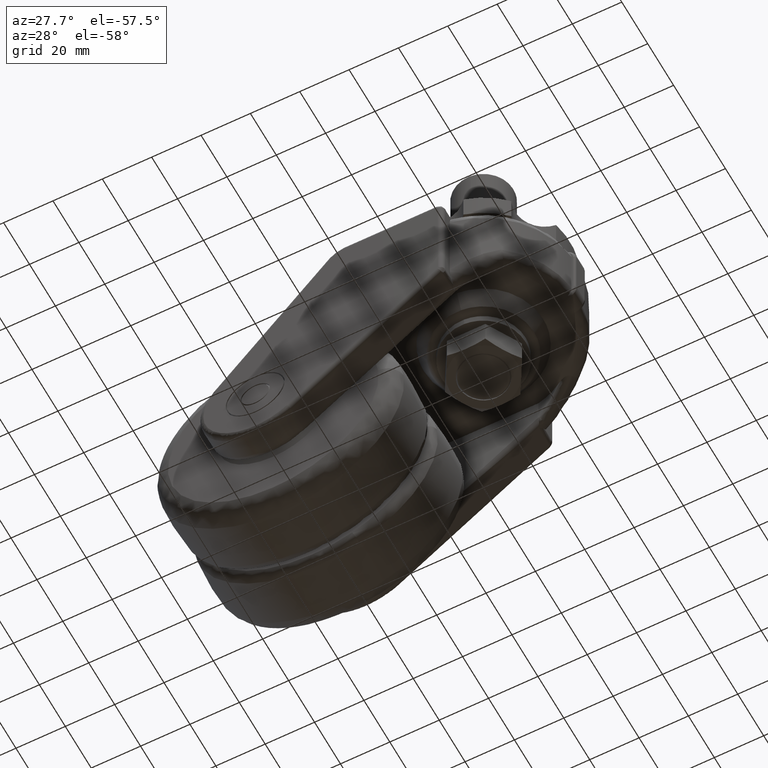
[diagram: clean part render]
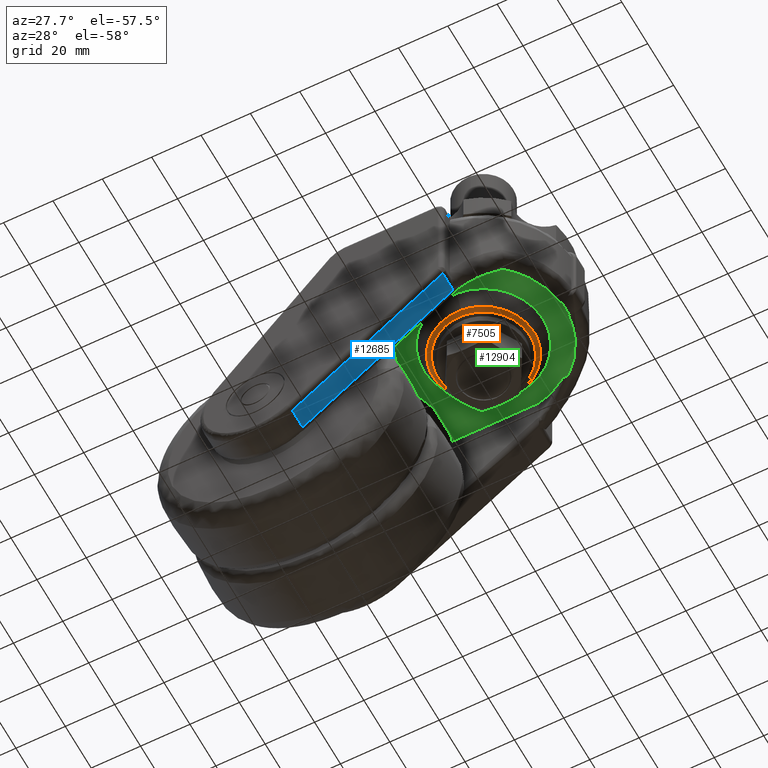
[diagram: same view with three faces highlighted in distinct colors, each labeled with its STEP entity id]
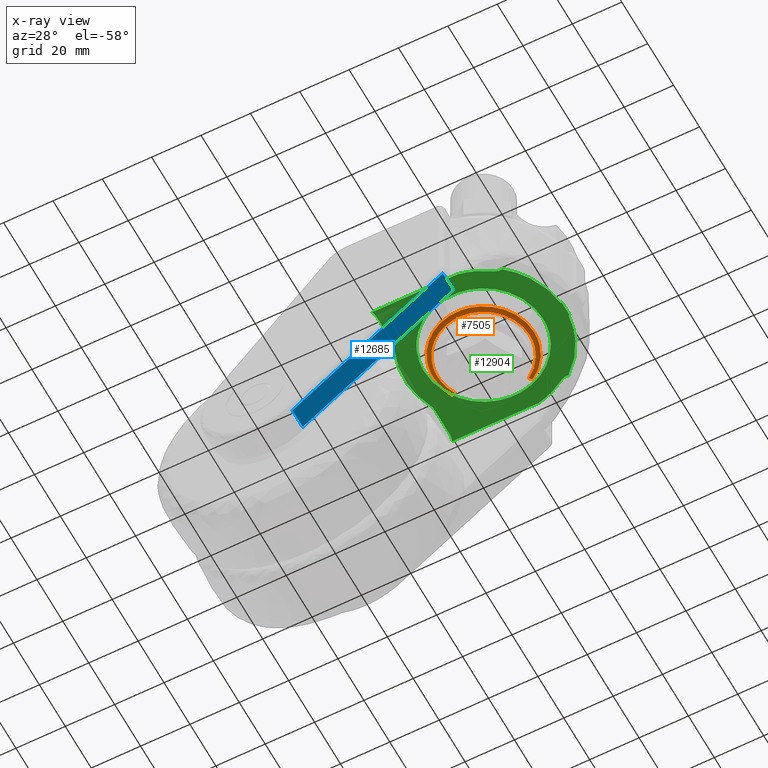
[diagram: x-ray of the same camera — body ghosted, the three highlighted faces saturated]
A machine part, auxiliary view with three faces highlighted in distinct colors.
The next image is the same camera in x-ray (body ghosted, the three faces saturated) — at least one of them is partly hidden behind the body in this view.
Their STEP definitions:

[orange] entity #7505 — the highlighted face is a freeform B-spline surface patch.
#7036=CARTESIAN_POINT('',(1.608237189835472,-20.434590996296642,-46.749999999971308));
#7037=VERTEX_POINT('',#7036);
#7038=CARTESIAN_POINT('',(-19.060155197579249,-7.541181597621881,-46.749999999995786));
#7039=VERTEX_POINT('',#7038);
#7040=CARTESIAN_POINT('',(1.608237189835472,-20.434590996296638,-46.749999999971308));
#7041=CARTESIAN_POINT('',(0.805359922932610,-20.497778807568849,-46.750000000000007));
#7042=CARTESIAN_POINT('',(0.0,-20.497778807568849,-46.750000000000000));
#7043=CARTESIAN_POINT('',(-13.933856306774846,-20.497778807568853,-46.750000000000007));
#7044=CARTESIAN_POINT('',(-19.060155197579245,-7.541181597621881,-46.749999999995794));
#7052=(BOUNDED_CURVE()B_SPLINE_CURVE(2,(#7040,#7041,#7042,#7043,#7044),.UNSPECIFIED.,.F.,.U.)B_SPLINE_CURVE_WITH_KNOTS((3,2,3),(0.736331300630033,0.750000000000000,0.937532549939011),.UNSPECIFIED.)CURVE()GEOMETRIC_REPRESENTATION_ITEM()RATIONAL_B_SPLINE_CURVE((0.969723356166111,0.983986122578148,1.0,0.780291951264274,0.890203187500830))REPRESENTATION_ITEM(''));
#7053=EDGE_CURVE('',#7037,#7039,#7052,.T.);
#7113=CARTESIAN_POINT('',(-20.497778807568849,0.0,-46.750000000000000));
#7114=VERTEX_POINT('',#7113);
#7115=CARTESIAN_POINT('',(-19.060155197579245,-7.541181597621881,-46.749999999995794));
#7116=CARTESIAN_POINT('',(-20.497778807568846,-3.907622483930452,-46.750000000000000));
#7117=CARTESIAN_POINT('',(-20.497778807568849,0.0,-46.750000000000000));
#7125=(BOUNDED_CURVE()B_SPLINE_CURVE(2,(#7115,#7116,#7117),.UNSPECIFIED.,.F.,.U.)B_SPLINE_CURVE_WITH_KNOTS((3,3),(0.937532549939011,1.0),.UNSPECIFIED.)CURVE()GEOMETRIC_REPRESENTATION_ITEM()RATIONAL_B_SPLINE_CURVE((0.890203187500830,0.926814829922274,1.0))REPRESENTATION_ITEM(''));
#7126=EDGE_CURVE('',#7039,#7114,#7125,.T.);
#7175=CARTESIAN_POINT('',(20.497778807568849,0.0,-46.750000000000000));
#7176=VERTEX_POINT('',#7175);
#7177=CARTESIAN_POINT('',(20.497778807568849,0.0,-46.750000000000000));
#7178=CARTESIAN_POINT('',(20.497778807568846,-18.947951829526595,-46.750000000000000));
#7179=CARTESIAN_POINT('',(1.608237189835472,-20.434590996296631,-46.749999999971308));
#7187=(BOUNDED_CURVE()B_SPLINE_CURVE(2,(#7177,#7178,#7179),.UNSPECIFIED.,.F.,.U.)B_SPLINE_CURVE_WITH_KNOTS((3,3),(0.500000000000000,0.736331300630033),.UNSPECIFIED.)CURVE()GEOMETRIC_REPRESENTATION_ITEM()RATIONAL_B_SPLINE_CURVE((1.0,0.723120658608400,0.969723356166109))REPRESENTATION_ITEM(''));
#7188=EDGE_CURVE('',#7176,#7037,#7187,.T.);
#7190=CARTESIAN_POINT('',(10.886024349340090,17.368172324893340,-46.750000000101480));
#7191=VERTEX_POINT('',#7190);
#7192=CARTESIAN_POINT('',(10.886024349340087,17.368172324893337,-46.750000000101480));
#7193=CARTESIAN_POINT('',(20.497778807568846,11.343716146447218,-46.750000000000000));
#7194=CARTESIAN_POINT('',(20.497778807568849,0.0,-46.750000000000000));
#7202=(BOUNDED_CURVE()B_SPLINE_CURVE(2,(#7192,#7193,#7194),.UNSPECIFIED.,.F.,.U.)B_SPLINE_CURVE_WITH_KNOTS((3,3),(0.340826728946267,0.500000000000000),.UNSPECIFIED.)CURVE()GEOMETRIC_REPRESENTATION_ITEM()RATIONAL_B_SPLINE_CURVE((0.864498809753992,0.813516913168024,1.0))REPRESENTATION_ITEM(''));
#7203=EDGE_CURVE('',#7191,#7176,#7202,.T.);
#7205=CARTESIAN_POINT('',(-17.962340493578960,9.874880250784839,-46.750000002932609));
#7206=VERTEX_POINT('',#7205);
#7222=CARTESIAN_POINT('',(-20.497778807568849,0.0,-46.750000000000000));
#7223=CARTESIAN_POINT('',(-20.497778807568846,5.262935082412175,-46.750000000000000));
#7224=CARTESIAN_POINT('',(-17.962340493578960,9.874880250784839,-46.750000002932609));
#7232=(BOUNDED_CURVE()B_SPLINE_CURVE(2,(#7222,#7223,#7224),.UNSPECIFIED.,.F.,.U.)B_SPLINE_CURVE_WITH_KNOTS((3,3),(0.0,0.082050816105531),.UNSPECIFIED.)CURVE()GEOMETRIC_REPRESENTATION_ITEM()RATIONAL_B_SPLINE_CURVE((1.0,0.903871489458322,0.870842360844274))REPRESENTATION_ITEM(''));
#7233=EDGE_CURVE('',#7114,#7206,#7232,.T.);
#7394=CARTESIAN_POINT('',(10.911256042158671,17.408428379351552,-46.662778054345594));
#7395=CARTESIAN_POINT('',(27.350965265465604,7.104346202300881,-46.662778054345601));
#7396=CARTESIAN_POINT('',(18.003973716102543,-9.897768308383723,-46.662778054345594));
#7397=CARTESIAN_POINT('',(8.106205407718823,-27.901742024486264,-46.662778054345594));
#7398=CARTESIAN_POINT('',(-9.897768308383723,-18.003973716102543,-46.662778054345594));
#7399=CARTESIAN_POINT('',(-27.901742024486264,-8.106205407718823,-46.662778054345594));
#7400=CARTESIAN_POINT('',(-18.003973716102543,9.897768308383721,-46.662778054345594));
#7401=CARTESIAN_POINT('',(10.598341664132629,16.909187272948380,-47.811488662897055));
#7402=CARTESIAN_POINT('',(26.566590831267849,6.900606865181003,-47.811488662897041));
#7403=CARTESIAN_POINT('',(17.487653485360624,-9.613918859512111,-47.811488662897034));
#7404=CARTESIAN_POINT('',(7.873734625848521,-27.101572344872736,-47.811488662897020));
#7405=CARTESIAN_POINT('',(-9.613918859512111,-17.487653485360624,-47.811488662897034));
#7406=CARTESIAN_POINT('',(-27.101572344872736,-7.873734625848521,-47.811488662897020));
#7407=CARTESIAN_POINT('',(-17.487653485360624,9.613918859512111,-47.811488662897034));
#7408=CARTESIAN_POINT('',(9.913552371158771,15.816636120668411,-47.747545278745072));
#7409=CARTESIAN_POINT('',(24.850047099370844,6.454738837328121,-47.747545278745058));
#7410=CARTESIAN_POINT('',(16.357725969762654,-8.992735951171506,-47.747545278745065));
#7411=CARTESIAN_POINT('',(7.364990018591152,-25.350461920934166,-47.747545278745072));
#7412=CARTESIAN_POINT('',(-8.992735951171506,-16.357725969762654,-47.747545278745065));
#7413=CARTESIAN_POINT('',(-25.350461920934166,-7.364990018591153,-47.747545278745072));
#7414=CARTESIAN_POINT('',(-16.357725969762654,8.992735951171506,-47.747545278745065));
#7422=(BOUNDED_SURFACE()B_SPLINE_SURFACE(2,2,((#7394,#7401,#7408),(#7395,#7402,#7409),(#7396,#7403,#7410),(#7397,#7404,#7411),(#7398,#7405,#7412),(#7399,#7406,#7413),(#7400,#7407,#7414)),.UNSPECIFIED.,.F.,.F.,.U.)B_SPLINE_SURFACE_WITH_KNOTS((3,2,2,3),(3,3),(0.0,32.678926906581673,66.719475767604237,100.760024628626790),(0.0,2.357739213814473),.UNSPECIFIED.)GEOMETRIC_REPRESENTATION_ITEM()RATIONAL_B_SPLINE_SURFACE(((0.902172434003437,0.758898030789854,0.904371783777623),(0.663425069069357,0.558066240462675,0.665042391568752),(0.922933074432487,0.776361664731348,0.925183035274047),(0.652612235512560,0.548970597784813,0.654203198081031),(0.922933074432487,0.776361664731348,0.925183035274047),(0.652612235512560,0.548970597784813,0.654203198081031),(0.922933074432487,0.776361664731348,0.925183035274047)))REPRESENTATION_ITEM('')SURFACE());
#7423=ORIENTED_EDGE('',*,*,#7203,.T.);
#7424=ORIENTED_EDGE('',*,*,#7188,.T.);
#7425=ORIENTED_EDGE('',*,*,#7053,.T.);
#7426=ORIENTED_EDGE('',*,*,#7126,.T.);
#7427=ORIENTED_EDGE('',*,*,#7233,.T.);
#7428=CARTESIAN_POINT('',(-16.444532813342992,9.040458417695760,-47.750000000000000));
#7429=VERTEX_POINT('',#7428);
#7430=CARTESIAN_POINT('',(-17.962340493578957,9.874880250784839,-46.750000002932602));
#7431=CARTESIAN_POINT('',(-17.456404601052053,9.596739639987643,-47.749999985194727));
#7432=CARTESIAN_POINT('',(-16.444532813342988,9.040458417695760,-47.750000000000007));
#7440=(BOUNDED_CURVE()B_SPLINE_CURVE(2,(#7430,#7431,#7432),.UNSPECIFIED.,.F.,.U.)B_SPLINE_CURVE_WITH_KNOTS((3,3),(-1.633016439692345,-0.356287705853259),.UNSPECIFIED.)CURVE()GEOMETRIC_REPRESENTATION_ITEM()RATIONAL_B_SPLINE_CURVE((0.910229671253189,0.789167273654068,0.912275219683573))REPRESENTATION_ITEM(''));
#7441=EDGE_CURVE('',#7206,#7429,#7440,.T.);
#7442=ORIENTED_EDGE('',*,*,#7441,.T.);
#7443=CARTESIAN_POINT('',(-18.765727999999950,0.0,-47.750000000000000));
#7444=VERTEX_POINT('',#7443);
#7445=CARTESIAN_POINT('',(-18.765727999999950,0.0,-47.750000000000000));
#7446=CARTESIAN_POINT('',(-18.765727999999953,4.818220021326581,-47.750000000000000));
#7447=CARTESIAN_POINT('',(-16.444532813342988,9.040458417695760,-47.750000000000000));
#7455=(BOUNDED_CURVE()B_SPLINE_CURVE(2,(#7445,#7446,#7447),.UNSPECIFIED.,.F.,.U.)B_SPLINE_CURVE_WITH_KNOTS((3,3),(0.0,0.082050816109396),.UNSPECIFIED.)CURVE()GEOMETRIC_REPRESENTATION_ITEM()RATIONAL_B_SPLINE_CURVE((1.0,0.903871489453793,0.870842360841162))REPRESENTATION_ITEM(''));
#7456=EDGE_CURVE('',#7444,#7429,#7455,.T.);
#7457=ORIENTED_EDGE('',*,*,#7456,.F.);
#7458=CARTESIAN_POINT('',(18.765727999999950,0.0,-47.750000000000000));
#7459=VERTEX_POINT('',#7458);
#7460=CARTESIAN_POINT('',(18.765727999999950,0.0,-47.750000000000000));
#7461=CARTESIAN_POINT('',(18.765727999999946,-18.765727999999946,-47.750000000000000));
#7462=CARTESIAN_POINT('',(0.0,-18.765727999999950,-47.750000000000000));
#7463=CARTESIAN_POINT('',(-18.765727999999946,-18.765727999999946,-47.750000000000000));
#7464=CARTESIAN_POINT('',(-18.765727999999950,0.0,-47.750000000000000));
#7472=(BOUNDED_CURVE()B_SPLINE_CURVE(2,(#7460,#7461,#7462,#7463,#7464),.UNSPECIFIED.,.F.,.U.)B_SPLINE_CURVE_WITH_KNOTS((3,2,3),(0.500000000000000,0.750000000000000,1.0),.UNSPECIFIED.)CURVE()GEOMETRIC_REPRESENTATION_ITEM()RATIONAL_B_SPLINE_CURVE((1.0,0.707106781186547,1.0,0.707106781186547,1.0))REPRESENTATION_ITEM(''));
#7473=EDGE_CURVE('',#7459,#7444,#7472,.T.);
#7474=ORIENTED_EDGE('',*,*,#7473,.F.);
#7475=CARTESIAN_POINT('',(9.966161405008862,15.900571516445449,-47.750000000000000));
#7476=VERTEX_POINT('',#7475);
#7477=CARTESIAN_POINT('',(9.966161405008863,15.900571516445448,-47.750000000000000));
#7478=CARTESIAN_POINT('',(18.765727999999946,10.385178497015016,-47.750000000000007));
#7479=CARTESIAN_POINT('',(18.765727999999950,0.0,-47.750000000000000));
#7487=(BOUNDED_CURVE()B_SPLINE_CURVE(2,(#7477,#7478,#7479),.UNSPECIFIED.,.F.,.U.)B_SPLINE_CURVE_WITH_KNOTS((3,3),(0.340826728949005,0.500000000000000),.UNSPECIFIED.)CURVE()GEOMETRIC_REPRESENTATION_ITEM()RATIONAL_B_SPLINE_CURVE((0.864498809752237,0.813516913171232,1.0))REPRESENTATION_ITEM(''));
#7488=EDGE_CURVE('',#7476,#7459,#7487,.T.);
#7489=ORIENTED_EDGE('',*,*,#7488,.F.);
#7490=CARTESIAN_POINT('',(10.886024349340087,17.368172324893337,-46.750000000101480));
#7491=CARTESIAN_POINT('',(10.579403369339831,16.878972057829824,-47.749999989837839));
#7492=CARTESIAN_POINT('',(9.966161405008862,15.900571516445449,-47.750000000000000));
#7500=(BOUNDED_CURVE()B_SPLINE_CURVE(2,(#7490,#7491,#7492),.UNSPECIFIED.,.F.,.U.)B_SPLINE_CURVE_WITH_KNOTS((3,3),(-1.633016443861418,-0.356287700713705),.UNSPECIFIED.)CURVE()GEOMETRIC_REPRESENTATION_ITEM()RATIONAL_B_SPLINE_CURVE((0.889754784478691,0.771415586925186,0.891754320131204))REPRESENTATION_ITEM(''));
#7501=EDGE_CURVE('',#7191,#7476,#7500,.T.);
#7502=ORIENTED_EDGE('',*,*,#7501,.F.);
#7503=EDGE_LOOP('',(#7423,#7424,#7425,#7426,#7427,#7442,#7457,#7474,#7489,#7502));
#7504=FACE_OUTER_BOUND('',#7503,.T.);
#7505=ADVANCED_FACE('',(#7504),#7422,.T.);

[blue] entity #12685 — the highlighted face is a freeform B-spline surface patch.
#11237=CARTESIAN_POINT('',(5.024925279322760,-33.0,-53.274314453694913));
#11238=VERTEX_POINT('',#11237);
#11249=CARTESIAN_POINT('',(-55.970693999999902,-33.0,-100.225768000000000));
#11250=VERTEX_POINT('',#11249);
#11251=CARTESIAN_POINT('',(-55.970693999999902,-33.0,-100.225768000000000));
#11252=CARTESIAN_POINT('',(5.024925279322760,-33.0,-53.274314453694913));
#11253=QUASI_UNIFORM_CURVE('',1,(#11251,#11252),.UNSPECIFIED.,.F.,.U.);
#11254=EDGE_CURVE('',#11250,#11238,#11253,.T.);
#11989=CARTESIAN_POINT('',(-55.970693999999902,-41.0,-100.225768000000000));
#11990=VERTEX_POINT('',#11989);
#12120=CARTESIAN_POINT('',(5.024925303963990,-41.0,-53.274314434727302));
#12121=VERTEX_POINT('',#12120);
#12143=CARTESIAN_POINT('',(5.024925303963990,-41.0,-53.274314434727302));
#12144=CARTESIAN_POINT('',(-55.970693999999902,-41.0,-100.225768000000000));
#12145=QUASI_UNIFORM_CURVE('',1,(#12143,#12144),.UNSPECIFIED.,.F.,.U.);
#12146=EDGE_CURVE('',#12121,#11990,#12145,.T.);
#12629=CARTESIAN_POINT('',(-55.970693999999902,-33.0,-100.225768000000000));
#12630=CARTESIAN_POINT('',(-55.970693999999902,-41.0,-100.225768000000000));
#12631=QUASI_UNIFORM_CURVE('',1,(#12629,#12630),.UNSPECIFIED.,.F.,.U.);
#12632=EDGE_CURVE('',#11250,#11990,#12631,.T.);
#12670=CARTESIAN_POINT('',(8.071656369975694,-41.399599984494458,-50.929089420143022));
#12671=CARTESIAN_POINT('',(-59.017426702041547,-41.399599984494458,-102.570994273920500));
#12672=CARTESIAN_POINT('',(8.071656369975694,-32.600399800928827,-50.929089420143022));
#12673=CARTESIAN_POINT('',(-59.017426702041547,-32.600399800928827,-102.570994273920500));
#12674=B_SPLINE_SURFACE_WITH_KNOTS('',1,1,((#12670,#12672),(#12671,#12673)),.UNSPECIFIED.,.F.,.F.,.U.,(2,2),(2,2),(0.0,84.663046273865163),(0.0,8.799200183565624),.UNSPECIFIED.);
#12675=ORIENTED_EDGE('',*,*,#11254,.T.);
#12676=CARTESIAN_POINT('',(5.024925279322760,-33.0,-53.274314453694913));
#12677=CARTESIAN_POINT('',(5.024925303963990,-41.0,-53.274314434727302));
#12678=QUASI_UNIFORM_CURVE('',1,(#12676,#12677),.UNSPECIFIED.,.F.,.U.);
#12679=EDGE_CURVE('',#11238,#12121,#12678,.T.);
#12680=ORIENTED_EDGE('',*,*,#12679,.T.);
#12681=ORIENTED_EDGE('',*,*,#12146,.T.);
#12682=ORIENTED_EDGE('',*,*,#12632,.F.);
#12683=EDGE_LOOP('',(#12675,#12680,#12681,#12682));
#12684=FACE_OUTER_BOUND('',#12683,.T.);
#12685=ADVANCED_FACE('',(#12684),#12674,.T.);

[green] entity #12904 — the highlighted face is a freeform B-spline surface patch.
#7055=CARTESIAN_POINT('',(1.891352058272792,-24.031906479094658,-40.499999999979202));
#7056=VERTEX_POINT('',#7055);
#7062=CARTESIAN_POINT('',(-22.415514324111179,-8.868734927468939,-40.499999999984361));
#7063=VERTEX_POINT('',#7062);
#7064=CARTESIAN_POINT('',(1.891352058272792,-24.031906479094662,-40.499999999979195));
#7065=CARTESIAN_POINT('',(0.947135881110556,-24.106217903845998,-40.500000000000007));
#7066=CARTESIAN_POINT('',(0.0,-24.106217903846002,-40.500000000000000));
#7067=CARTESIAN_POINT('',(-16.386779246818985,-24.106217903846002,-40.500000000000000));
#7068=CARTESIAN_POINT('',(-22.415514324111182,-8.868734927468939,-40.499999999984361));
#7076=(BOUNDED_CURVE()B_SPLINE_CURVE(2,(#7064,#7065,#7066,#7067,#7068),.UNSPECIFIED.,.F.,.U.)B_SPLINE_CURVE_WITH_KNOTS((3,2,3),(0.736331300631088,0.750000000000000,0.937532549938036),.UNSPECIFIED.)CURVE()GEOMETRIC_REPRESENTATION_ITEM()RATIONAL_B_SPLINE_CURVE((0.969723356168311,0.983986122579384,1.0,0.780291951265417,0.890203187499687))REPRESENTATION_ITEM(''));
#7077=EDGE_CURVE('',#7056,#7063,#7076,.T.);
#7129=CARTESIAN_POINT('',(-24.106217903846002,0.0,-40.500000000000000));
#7130=VERTEX_POINT('',#7129);
#7131=CARTESIAN_POINT('',(-22.415514324111175,-8.868734927468939,-40.499999999984368));
#7132=CARTESIAN_POINT('',(-24.106217903846002,-4.595522274364731,-40.500000000000000));
#7133=CARTESIAN_POINT('',(-24.106217903846002,0.0,-40.500000000000000));
#7141=(BOUNDED_CURVE()B_SPLINE_CURVE(2,(#7131,#7132,#7133),.UNSPECIFIED.,.F.,.U.)B_SPLINE_CURVE_WITH_KNOTS((3,3),(0.937532549938035,1.0),.UNSPECIFIED.)CURVE()GEOMETRIC_REPRESENTATION_ITEM()RATIONAL_B_SPLINE_CURVE((0.890203187499686,0.926814829921130,1.0))REPRESENTATION_ITEM(''));
#7142=EDGE_CURVE('',#7063,#7130,#7141,.T.);
#7144=CARTESIAN_POINT('',(24.106217903846002,0.0,-40.500000000000000));
#7145=VERTEX_POINT('',#7144);
#7146=CARTESIAN_POINT('',(-24.106217903846002,0.0,-40.500000000000000));
#7147=CARTESIAN_POINT('',(-24.106217903846002,24.106217903846002,-40.500000000000000));
#7148=CARTESIAN_POINT('',(0.0,24.106217903846002,-40.500000000000000));
#7149=CARTESIAN_POINT('',(24.106217903846002,24.106217903846002,-40.500000000000000));
#7150=CARTESIAN_POINT('',(24.106217903846002,0.0,-40.500000000000000));
#7158=(BOUNDED_CURVE()B_SPLINE_CURVE(2,(#7146,#7147,#7148,#7149,#7150),.UNSPECIFIED.,.F.,.U.)B_SPLINE_CURVE_WITH_KNOTS((3,2,3),(0.0,0.250000000000000,0.500000000000000),.UNSPECIFIED.)CURVE()GEOMETRIC_REPRESENTATION_ITEM()RATIONAL_B_SPLINE_CURVE((1.0,0.707106781186548,1.0,0.707106781186548,1.0))REPRESENTATION_ITEM(''));
#7159=EDGE_CURVE('',#7130,#7145,#7158,.T.);
#7161=CARTESIAN_POINT('',(24.106217903846002,0.0,-40.500000000000000));
#7162=CARTESIAN_POINT('',(24.106217903846002,-22.283558619937082,-40.500000000000000));
#7163=CARTESIAN_POINT('',(1.891352058272792,-24.031906479094662,-40.499999999979195));
#7171=(BOUNDED_CURVE()B_SPLINE_CURVE(2,(#7161,#7162,#7163),.UNSPECIFIED.,.F.,.U.)B_SPLINE_CURVE_WITH_KNOTS((3,3),(0.500000000000000,0.736331300631087),.UNSPECIFIED.)CURVE()GEOMETRIC_REPRESENTATION_ITEM()RATIONAL_B_SPLINE_CURVE((1.0,0.723120658607164,0.969723356168311))REPRESENTATION_ITEM(''));
#7172=EDGE_CURVE('',#7145,#7056,#7171,.T.);
#7764=CARTESIAN_POINT('',(32.863353450309951,3.0,-40.500000000000000));
#7765=VERTEX_POINT('',#7764);
#7766=CARTESIAN_POINT('',(33.299999999999997,3.0,-40.500000000000000));
#7767=VERTEX_POINT('',#7766);
#7768=CARTESIAN_POINT('',(32.863353450309951,3.0,-40.500000000000000));
#7769=CARTESIAN_POINT('',(33.299999999999997,3.0,-40.500000000000000));
#7770=QUASI_UNIFORM_CURVE('',1,(#7768,#7769),.UNSPECIFIED.,.F.,.U.);
#7771=EDGE_CURVE('',#7765,#7767,#7770,.T.);
#8084=CARTESIAN_POINT('',(32.863353450309951,-3.0,-40.500000000000000));
#8085=VERTEX_POINT('',#8084);
#8099=CARTESIAN_POINT('',(33.299999999999997,-3.0,-40.500000000000000));
#8100=VERTEX_POINT('',#8099);
#8101=CARTESIAN_POINT('',(33.299999999999997,-3.0,-40.500000000000000));
#8102=CARTESIAN_POINT('',(32.863353450309951,-3.0,-40.500000000000000));
#8103=QUASI_UNIFORM_CURVE('',1,(#8101,#8102),.UNSPECIFIED.,.F.,.U.);
#8104=EDGE_CURVE('',#8100,#8085,#8103,.T.);
#8427=CARTESIAN_POINT('',(33.299999999999997,3.0,-40.500000000000000));
#8428=CARTESIAN_POINT('',(33.299999999999997,-3.0,-40.500000000000000));
#8429=QUASI_UNIFORM_CURVE('',1,(#8427,#8428),.UNSPECIFIED.,.F.,.U.);
#8430=EDGE_CURVE('',#7767,#8100,#8429,.T.);
#8834=CARTESIAN_POINT('',(20.890018525611548,-25.546176347927751,-40.500000000000000));
#8835=VERTEX_POINT('',#8834);
#8855=CARTESIAN_POINT('',(32.863353450309972,-2.999999999999993,-40.500000000000000));
#8856=CARTESIAN_POINT('',(31.605041151798069,-16.784120605622935,-40.500000000000000));
#8857=CARTESIAN_POINT('',(20.890018525611548,-25.546176347927751,-40.500000000000000));
#8865=(BOUNDED_CURVE()B_SPLINE_CURVE(2,(#8855,#8856,#8857),.UNSPECIFIED.,.F.,.U.)CURVE()GEOMETRIC_REPRESENTATION_ITEM()QUASI_UNIFORM_CURVE()RATIONAL_B_SPLINE_CURVE((1.0,0.922167216070939,1.0))REPRESENTATION_ITEM(''));
#8866=EDGE_CURVE('',#8085,#8835,#8865,.T.);
#9022=CARTESIAN_POINT('',(-28.307071999999948,17.113600053373400,-40.500000000000000));
#9023=VERTEX_POINT('',#9022);
#9039=CARTESIAN_POINT('',(-29.152441060240950,13.196028956817999,-40.500000000000000));
#9040=VERTEX_POINT('',#9039);
#9041=CARTESIAN_POINT('',(-28.307071999999959,17.113600053373350,-40.500000000000000));
#9042=CARTESIAN_POINT('',(-28.307071999999959,15.063603799482561,-40.500000000000007));
#9043=CARTESIAN_POINT('',(-29.152441060240939,13.196028956817999,-40.500000000000000));
#9051=(BOUNDED_CURVE()B_SPLINE_CURVE(2,(#9041,#9042,#9043),.UNSPECIFIED.,.F.,.U.)CURVE()GEOMETRIC_REPRESENTATION_ITEM()QUASI_UNIFORM_CURVE()RATIONAL_B_SPLINE_CURVE((1.0,0.977500328166832,1.0))REPRESENTATION_ITEM(''));
#9052=EDGE_CURVE('',#9023,#9040,#9051,.T.);
#9099=CARTESIAN_POINT('',(-28.307071999999948,27.500000000000000,-40.500000000000000));
#9100=VERTEX_POINT('',#9099);
#9116=CARTESIAN_POINT('',(-28.307071999999948,27.500000000000000,-40.500000000000000));
#9117=CARTESIAN_POINT('',(-28.307071999999948,17.113600053373400,-40.500000000000000));
#9118=QUASI_UNIFORM_CURVE('',1,(#9116,#9117),.UNSPECIFIED.,.F.,.U.);
#9119=EDGE_CURVE('',#9100,#9023,#9118,.T.);
#9149=CARTESIAN_POINT('',(-28.975311133672101,31.0,-40.500000000000000));
#9150=VERTEX_POINT('',#9149);
#9183=CARTESIAN_POINT('',(-28.975311133672111,31.0,-40.500000000000000));
#9184=CARTESIAN_POINT('',(-28.307071999999952,29.313791934252986,-40.500000000000000));
#9185=CARTESIAN_POINT('',(-28.307071999999959,27.500000000000000,-40.500000000000000));
#9193=(BOUNDED_CURVE()B_SPLINE_CURVE(2,(#9183,#9184,#9185),.UNSPECIFIED.,.F.,.U.)CURVE()GEOMETRIC_REPRESENTATION_ITEM()QUASI_UNIFORM_CURVE()RATIONAL_B_SPLINE_CURVE((1.0,0.982257358985115,1.0))REPRESENTATION_ITEM(''));
#9194=EDGE_CURVE('',#9150,#9100,#9193,.T.);
#9298=CARTESIAN_POINT('',(20.890018525613801,25.546176347928650,-40.500000000000000));
#9299=VERTEX_POINT('',#9298);
#9315=CARTESIAN_POINT('',(17.248898610326901,26.447599073085250,-40.500000000000000));
#9316=VERTEX_POINT('',#9315);
#9317=CARTESIAN_POINT('',(20.890018525613780,25.546176347928721,-40.500000000000000));
#9318=CARTESIAN_POINT('',(20.852502418089081,25.531181162683431,-40.500000000000007));
#9319=CARTESIAN_POINT('',(20.814332010198179,25.517754511093230,-40.500000000000000));
#9320=CARTESIAN_POINT('',(20.736800680700650,25.493755188938160,-40.499999999999993));
#9321=CARTESIAN_POINT('',(20.697306768395929,25.483153888200039,-40.500000000000007));
#9322=CARTESIAN_POINT('',(20.578178876257130,25.455515170430001,-40.500000000000000));
#9323=CARTESIAN_POINT('',(20.498343247403621,25.442652708335181,-40.500000000000000));
#9324=CARTESIAN_POINT('',(20.338023876804691,25.425573788741421,-40.500000000000000));
#9325=CARTESIAN_POINT('',(20.257538656418401,25.421377056719340,-40.500000000000000));
#9326=CARTESIAN_POINT('',(20.096033421295761,25.420117896693110,-40.500000000000000));
#9327=CARTESIAN_POINT('',(20.014803332057689,25.423081455827209,-40.500000000000000));
#9328=CARTESIAN_POINT('',(19.771853408978121,25.441035030650571,-40.499999999999993));
#9329=CARTESIAN_POINT('',(19.612599920422689,25.464713508766991,-40.500000000000007));
#9330=CARTESIAN_POINT('',(19.297962380291960,25.528770345782910,-40.499999999999993));
#9331=CARTESIAN_POINT('',(19.142600619134651,25.569244906616909,-40.500000000000000));
#9332=CARTESIAN_POINT('',(18.911916106492260,25.640134061760200,-40.499999999999979));
#9333=CARTESIAN_POINT('',(18.835418374319971,25.665477624418319,-40.500000000000007));
#9334=CARTESIAN_POINT('',(18.683158764073070,25.719340580163639,-40.499999999999993));
#9335=CARTESIAN_POINT('',(18.607320210520829,25.747895356668760,-40.500000000000000));
#9336=CARTESIAN_POINT('',(18.382177347426151,25.837503871932661,-40.499999999999993));
#9337=CARTESIAN_POINT('',(18.234821168394820,25.902608038175721,-40.500000000000000));
#9338=CARTESIAN_POINT('',(17.800069309744611,26.112252124490979,-40.500000000000000));
#9339=CARTESIAN_POINT('',(17.519864586698549,26.270877373683899,-40.500000000000007));
#9340=CARTESIAN_POINT('',(17.248898610326901,26.447599073085300,-40.500000000000000));
#9341=B_SPLINE_CURVE_WITH_KNOTS('',3,(#9317,#9318,#9319,#9320,#9321,#9322,#9323,#9324,#9325,#9326,#9327,#9328,#9329,#9330,#9331,#9332,#9333,#9334,#9335,#9336,#9337,#9338,#9339,#9340),.UNSPECIFIED.,.F.,.U.,(4,2,2,2,2,2,2,2,2,2,2,4),(0.0,0.031249999999999,0.062499999999998,0.124999999999997,0.187499999999995,0.249999999999994,0.374999999999993,0.499999999999993,0.562499999999993,0.624999999999994,0.749999999999996,1.0),.UNSPECIFIED.);
#9342=EDGE_CURVE('',#9299,#9316,#9341,.T.);
#10774=CARTESIAN_POINT('',(6.000000000000171,31.0,-40.500000000000000));
#10775=VERTEX_POINT('',#10774);
#10776=CARTESIAN_POINT('',(17.248898610326918,26.447599073085271,-40.500000000000000));
#10777=CARTESIAN_POINT('',(12.070155455522153,29.825131202156953,-40.500000000000000));
#10778=CARTESIAN_POINT('',(6.000000000000157,30.999999999999950,-40.500000000000000));
#10786=(BOUNDED_CURVE()B_SPLINE_CURVE(2,(#10776,#10777,#10778),.UNSPECIFIED.,.F.,.U.)CURVE()GEOMETRIC_REPRESENTATION_ITEM()QUASI_UNIFORM_CURVE()RATIONAL_B_SPLINE_CURVE((1.0,0.981363185865212,1.0))REPRESENTATION_ITEM(''));
#10787=EDGE_CURVE('',#9316,#10775,#10786,.T.);
#10805=CARTESIAN_POINT('',(-28.975311133672101,31.0,-40.500000000000000));
#10806=CARTESIAN_POINT('',(6.000000000000171,31.0,-40.500000000000000));
#10807=QUASI_UNIFORM_CURVE('',1,(#10805,#10806),.UNSPECIFIED.,.F.,.U.);
#10808=EDGE_CURVE('',#9150,#10775,#10807,.T.);
#10858=CARTESIAN_POINT('',(-29.152441060240950,-13.196028956817999,-40.500000000000000));
#10859=VERTEX_POINT('',#10858);
#10860=CARTESIAN_POINT('',(-29.152441060240928,-13.196028956817999,-40.500000000000000));
#10861=CARTESIAN_POINT('',(-35.125703466272178,-1.387779E-014,-40.499999999999993));
#10862=CARTESIAN_POINT('',(-29.152441060240928,13.196028956817980,-40.500000000000000));
#10870=(BOUNDED_CURVE()B_SPLINE_CURVE(2,(#10860,#10861,#10862),.UNSPECIFIED.,.F.,.U.)CURVE()GEOMETRIC_REPRESENTATION_ITEM()QUASI_UNIFORM_CURVE()RATIONAL_B_SPLINE_CURVE((1.0,0.911013783132529,1.0))REPRESENTATION_ITEM(''));
#10871=EDGE_CURVE('',#10859,#9040,#10870,.T.);
#10906=CARTESIAN_POINT('',(-28.307071999999948,-17.113600053373400,-40.500000000000000));
#10907=VERTEX_POINT('',#10906);
#10937=CARTESIAN_POINT('',(-28.307071999999959,-17.113600053373350,-40.500000000000000));
#10938=CARTESIAN_POINT('',(-28.307071999999959,-15.063603799482561,-40.500000000000007));
#10939=CARTESIAN_POINT('',(-29.152441060240939,-13.196028956817999,-40.500000000000000));
#10947=(BOUNDED_CURVE()B_SPLINE_CURVE(2,(#10937,#10938,#10939),.UNSPECIFIED.,.F.,.U.)CURVE()GEOMETRIC_REPRESENTATION_ITEM()QUASI_UNIFORM_CURVE()RATIONAL_B_SPLINE_CURVE((1.0,0.977500328166832,1.0))REPRESENTATION_ITEM(''));
#10948=EDGE_CURVE('',#10907,#10859,#10947,.T.);
#10967=CARTESIAN_POINT('',(-28.307071999999948,-27.500000000000000,-40.500000000000000));
#10968=VERTEX_POINT('',#10967);
#10990=CARTESIAN_POINT('',(-28.307071999999948,-27.500000000000000,-40.500000000000000));
#10991=CARTESIAN_POINT('',(-28.307071999999948,-17.113600053373400,-40.500000000000000));
#10992=QUASI_UNIFORM_CURVE('',1,(#10990,#10991),.UNSPECIFIED.,.F.,.U.);
#10993=EDGE_CURVE('',#10968,#10907,#10992,.T.);
#11017=CARTESIAN_POINT('',(-28.975311133672101,-31.0,-40.500000000000000));
#11018=VERTEX_POINT('',#11017);
#11065=CARTESIAN_POINT('',(-28.975311133672111,-31.0,-40.500000000000000));
#11066=CARTESIAN_POINT('',(-28.307071999999952,-29.313791934252986,-40.500000000000000));
#11067=CARTESIAN_POINT('',(-28.307071999999959,-27.500000000000000,-40.500000000000000));
#11075=(BOUNDED_CURVE()B_SPLINE_CURVE(2,(#11065,#11066,#11067),.UNSPECIFIED.,.F.,.U.)CURVE()GEOMETRIC_REPRESENTATION_ITEM()QUASI_UNIFORM_CURVE()RATIONAL_B_SPLINE_CURVE((1.0,0.982257358985115,1.0))REPRESENTATION_ITEM(''));
#11076=EDGE_CURVE('',#11018,#10968,#11075,.T.);
#11175=CARTESIAN_POINT('',(17.248898610326901,-26.447599073085250,-40.500000000000000));
#11176=VERTEX_POINT('',#11175);
#11190=CARTESIAN_POINT('',(20.890018525611520,-25.546176347927819,-40.500000000000000));
#11191=CARTESIAN_POINT('',(20.852502418086821,-25.531181162682600,-40.500000000000000));
#11192=CARTESIAN_POINT('',(20.814332010195919,-25.517754511092480,-40.500000000000000));
#11193=CARTESIAN_POINT('',(20.736800680698408,-25.493755188937541,-40.500000000000000));
#11194=CARTESIAN_POINT('',(20.697306768393670,-25.483153888199460,-40.500000000000000));
#11195=CARTESIAN_POINT('',(20.578178876254949,-25.455515170429599,-40.500000000000000));
#11196=CARTESIAN_POINT('',(20.498343247401468,-25.442652708334869,-40.500000000000000));
#11197=CARTESIAN_POINT('',(20.338023876802630,-25.425573788741271,-40.500000000000000));
#11198=CARTESIAN_POINT('',(20.257538656416390,-25.421377056719258,-40.499999999999993));
#11199=CARTESIAN_POINT('',(20.096033421293839,-25.420117896693160,-40.500000000000007));
#11200=CARTESIAN_POINT('',(20.014803332055809,-25.423081455827290,-40.500000000000007));
#11201=CARTESIAN_POINT('',(19.771853408976430,-25.441035030650792,-40.500000000000021));
#11202=CARTESIAN_POINT('',(19.612599920421101,-25.464713508767240,-40.499999999999993));
#11203=CARTESIAN_POINT('',(19.297962380290588,-25.528770345783251,-40.500000000000007));
#11204=CARTESIAN_POINT('',(19.142600619133390,-25.569244906617261,-40.499999999999993));
#11205=CARTESIAN_POINT('',(18.911916106491159,-25.640134061760570,-40.500000000000000));
#11206=CARTESIAN_POINT('',(18.835418374318909,-25.665477624418671,-40.499999999999993));
#11207=CARTESIAN_POINT('',(18.683158764072122,-25.719340580164001,-40.499999999999993));
#11208=CARTESIAN_POINT('',(18.607320210519941,-25.747895356669119,-40.500000000000007));
#11209=CARTESIAN_POINT('',(18.382177347425401,-25.837503871932981,-40.499999999999993));
#11210=CARTESIAN_POINT('',(18.234821168394181,-25.902608038176020,-40.500000000000000));
#11211=CARTESIAN_POINT('',(17.800069309744259,-26.112252124491171,-40.500000000000007));
#11212=CARTESIAN_POINT('',(17.519864586698372,-26.270877373684002,-40.499999999999993));
#11213=CARTESIAN_POINT('',(17.248898610326901,-26.447599073085300,-40.500000000000000));
#11214=B_SPLINE_CURVE_WITH_KNOTS('',3,(#11190,#11191,#11192,#11193,#11194,#11195,#11196,#11197,#11198,#11199,#11200,#11201,#11202,#11203,#11204,#11205,#11206,#11207,#11208,#11209,#11210,#11211,#11212,#11213),.UNSPECIFIED.,.F.,.U.,(4,2,2,2,2,2,2,2,2,2,2,4),(0.0,0.031250000000000,0.062500000000000,0.124999999999999,0.187499999999999,0.249999999999998,0.374999999999997,0.499999999999995,0.562499999999996,0.624999999999996,0.749999999999997,1.0),.UNSPECIFIED.);
#11215=EDGE_CURVE('',#8835,#11176,#11214,.T.);
#12744=CARTESIAN_POINT('',(6.000000000000171,-31.0,-40.500000000000000));
#12745=VERTEX_POINT('',#12744);
#12746=CARTESIAN_POINT('',(17.248898610326918,-26.447599073085271,-40.500000000000000));
#12747=CARTESIAN_POINT('',(12.070155455522153,-29.825131202156953,-40.500000000000000));
#12748=CARTESIAN_POINT('',(6.000000000000157,-30.999999999999950,-40.500000000000000));
#12756=(BOUNDED_CURVE()B_SPLINE_CURVE(2,(#12746,#12747,#12748),.UNSPECIFIED.,.F.,.U.)CURVE()GEOMETRIC_REPRESENTATION_ITEM()QUASI_UNIFORM_CURVE()RATIONAL_B_SPLINE_CURVE((1.0,0.981363185865212,1.0))REPRESENTATION_ITEM(''));
#12757=EDGE_CURVE('',#11176,#12745,#12756,.T.);
#12780=CARTESIAN_POINT('',(-28.975311133672101,-31.0,-40.500000000000000));
#12781=CARTESIAN_POINT('',(6.000000000000171,-31.0,-40.500000000000000));
#12782=QUASI_UNIFORM_CURVE('',1,(#12780,#12781),.UNSPECIFIED.,.F.,.U.);
#12783=EDGE_CURVE('',#11018,#12745,#12782,.T.);
#12861=CARTESIAN_POINT('',(36.561734260446258,-34.096899879831973,-40.500000000000000));
#12862=CARTESIAN_POINT('',(-35.261736595756219,-34.096899879831973,-40.500000000000000));
#12863=CARTESIAN_POINT('',(36.561734260446258,34.096901542801547,-40.500000000000000));
#12864=CARTESIAN_POINT('',(-35.261736595756219,34.096901542801547,-40.500000000000000));
#12865=B_SPLINE_SURFACE_WITH_KNOTS('',1,1,((#12861,#12863),(#12862,#12864)),.UNSPECIFIED.,.F.,.F.,.U.,(2,2),(2,2),(0.0,71.823470856202476),(0.0,68.193801422633527),.UNSPECIFIED.);
#12866=CARTESIAN_POINT('',(20.890018525613801,25.546176347928650,-40.500000000000000));
#12867=CARTESIAN_POINT('',(31.605041151798115,16.784120605622256,-40.499999999999993));
#12868=CARTESIAN_POINT('',(32.863353450309972,3.000000000000001,-40.500000000000000));
#12876=(BOUNDED_CURVE()B_SPLINE_CURVE(2,(#12866,#12867,#12868),.UNSPECIFIED.,.F.,.U.)CURVE()GEOMETRIC_REPRESENTATION_ITEM()QUASI_UNIFORM_CURVE()RATIONAL_B_SPLINE_CURVE((1.0,0.922167216070946,1.0))REPRESENTATION_ITEM(''));
#12877=EDGE_CURVE('',#9299,#7765,#12876,.T.);
#12878=ORIENTED_EDGE('',*,*,#12877,.T.);
#12879=ORIENTED_EDGE('',*,*,#7771,.T.);
#12880=ORIENTED_EDGE('',*,*,#8430,.T.);
#12881=ORIENTED_EDGE('',*,*,#8104,.T.);
#12882=ORIENTED_EDGE('',*,*,#8866,.T.);
#12883=ORIENTED_EDGE('',*,*,#11215,.T.);
#12884=ORIENTED_EDGE('',*,*,#12757,.T.);
#12885=ORIENTED_EDGE('',*,*,#12783,.F.);
#12886=ORIENTED_EDGE('',*,*,#11076,.T.);
#12887=ORIENTED_EDGE('',*,*,#10993,.T.);
#12888=ORIENTED_EDGE('',*,*,#10948,.T.);
#12889=ORIENTED_EDGE('',*,*,#10871,.T.);
#12890=ORIENTED_EDGE('',*,*,#9052,.F.);
#12891=ORIENTED_EDGE('',*,*,#9119,.F.);
#12892=ORIENTED_EDGE('',*,*,#9194,.F.);
#12893=ORIENTED_EDGE('',*,*,#10808,.T.);
#12894=ORIENTED_EDGE('',*,*,#10787,.F.);
#12895=ORIENTED_EDGE('',*,*,#9342,.F.);
#12896=EDGE_LOOP('',(#12878,#12879,#12880,#12881,#12882,#12883,#12884,#12885,#12886,#12887,#12888,#12889,#12890,#12891,#12892,#12893,#12894,#12895));
#12897=FACE_OUTER_BOUND('',#12896,.T.);
#12898=ORIENTED_EDGE('',*,*,#7159,.F.);
#12899=ORIENTED_EDGE('',*,*,#7142,.F.);
#12900=ORIENTED_EDGE('',*,*,#7077,.F.);
#12901=ORIENTED_EDGE('',*,*,#7172,.F.);
#12902=EDGE_LOOP('',(#12898,#12899,#12900,#12901));
#12903=FACE_BOUND('',#12902,.T.);
#12904=ADVANCED_FACE('',(#12897,#12903),#12865,.T.);